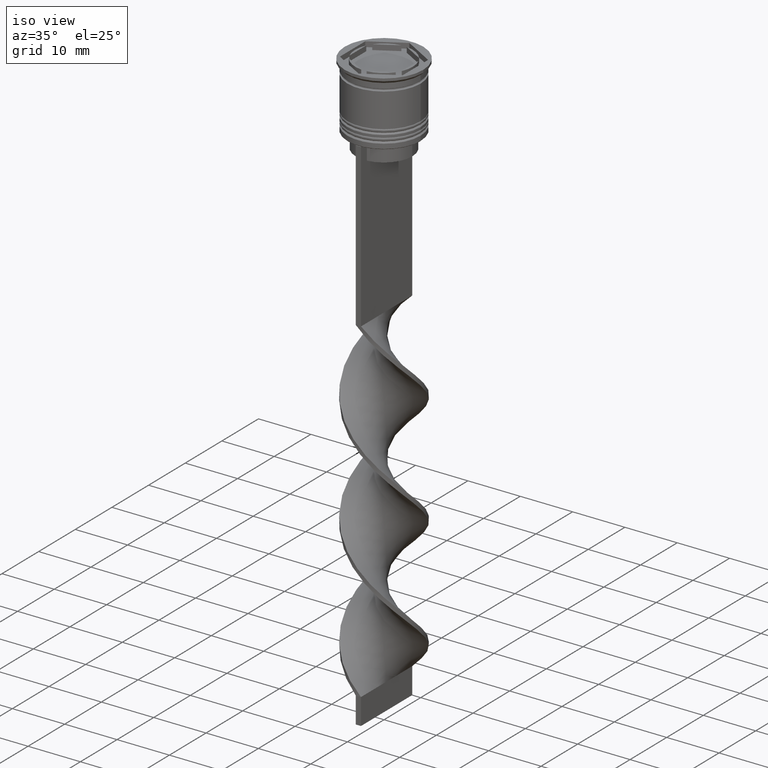
[diagram: clean part render]
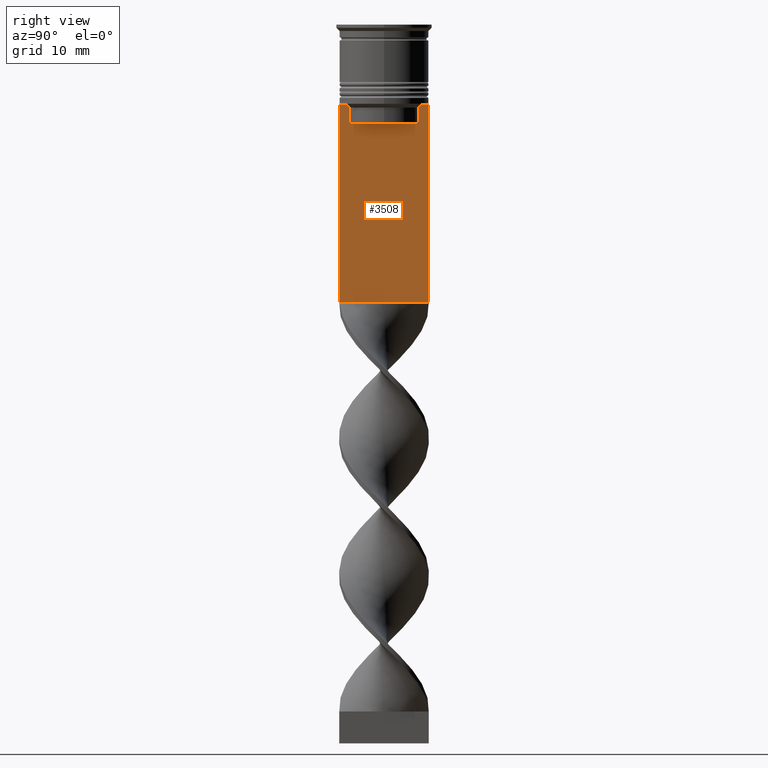
[diagram: tour spotlight — one face highlighted and labeled with its STEP entity id]
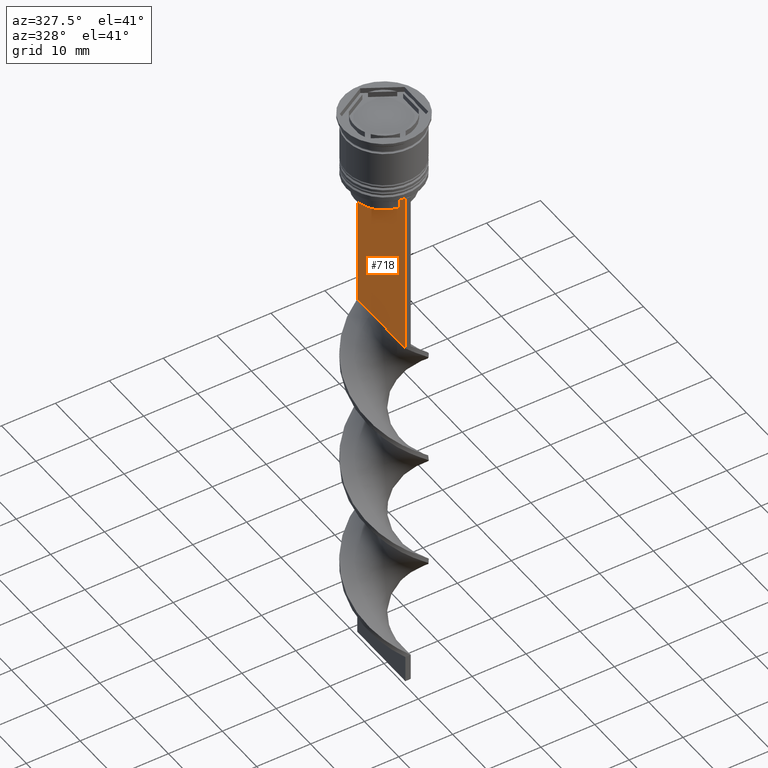
[diagram: tour spotlight — one face highlighted and labeled with its STEP entity id]
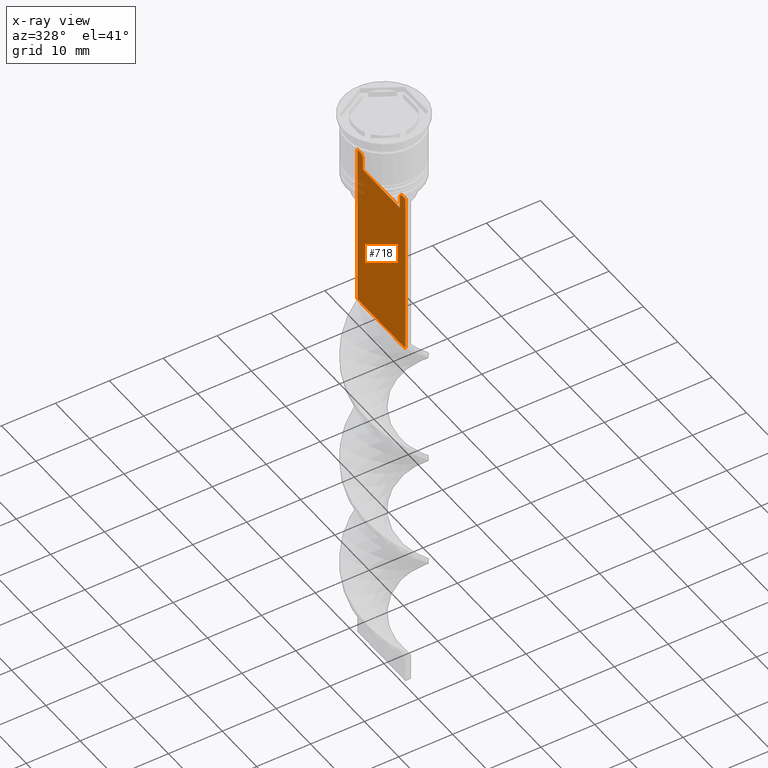
[diagram: x-ray of the same camera — body ghosted, this tour face saturated]
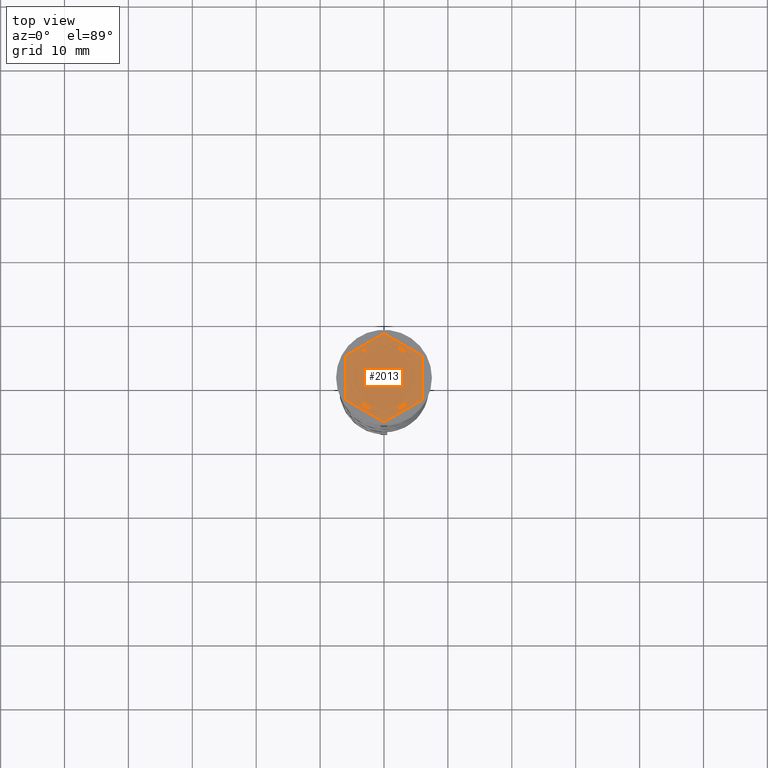
[diagram: tour spotlight — one face highlighted and labeled with its STEP entity id]
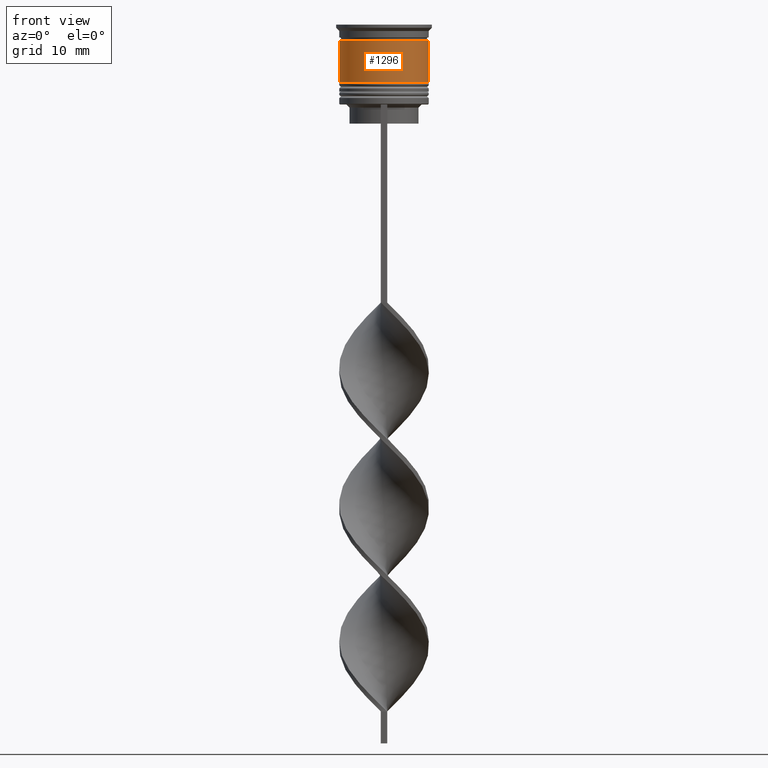
[diagram: tour spotlight — one face highlighted and labeled with its STEP entity id]
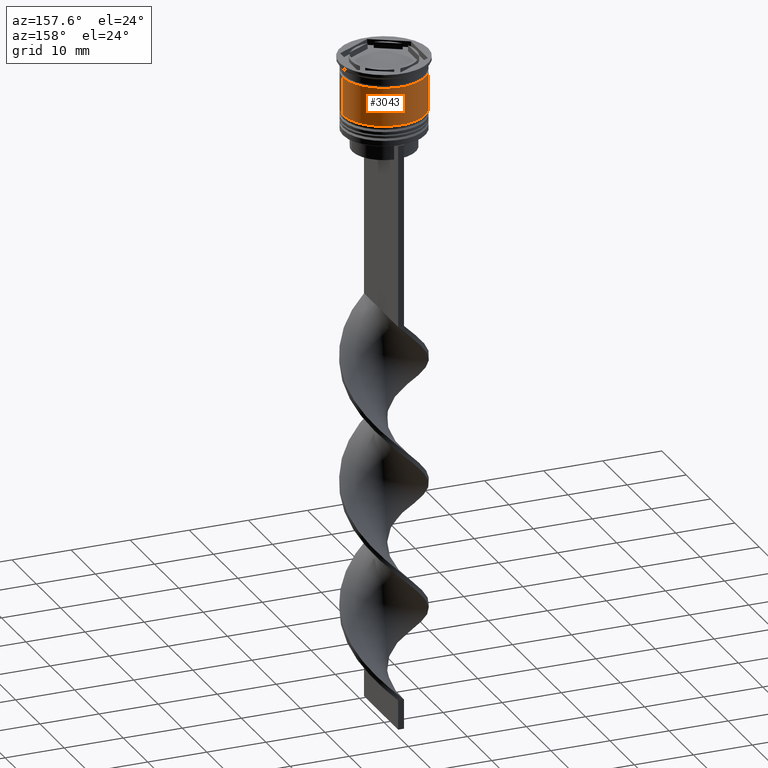
[diagram: tour spotlight — one face highlighted and labeled with its STEP entity id]
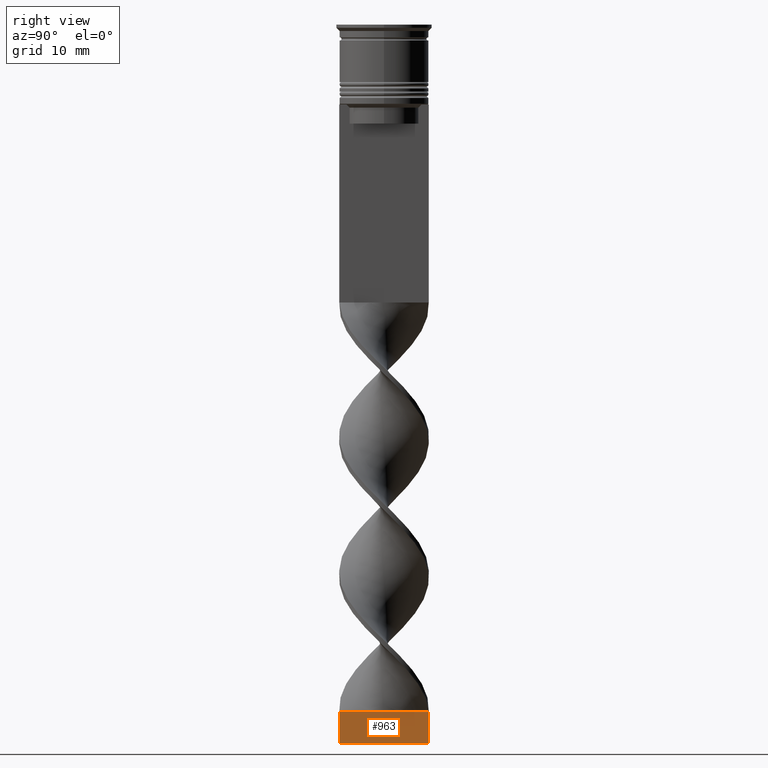
[diagram: tour spotlight — one face highlighted and labeled with its STEP entity id]
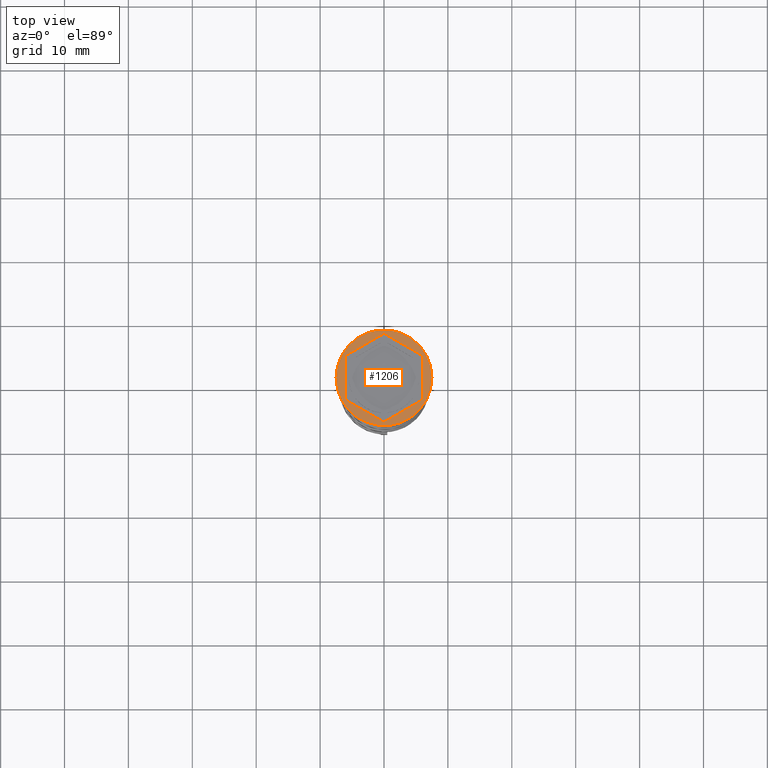
[diagram: tour spotlight — one face highlighted and labeled with its STEP entity id]
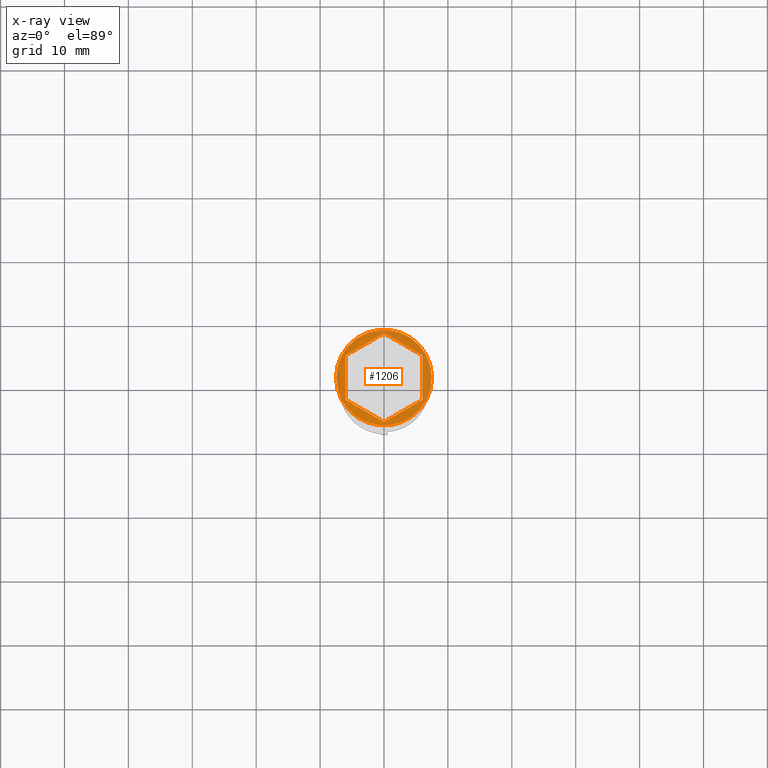
[diagram: x-ray of the same camera — body ghosted, this tour face saturated]
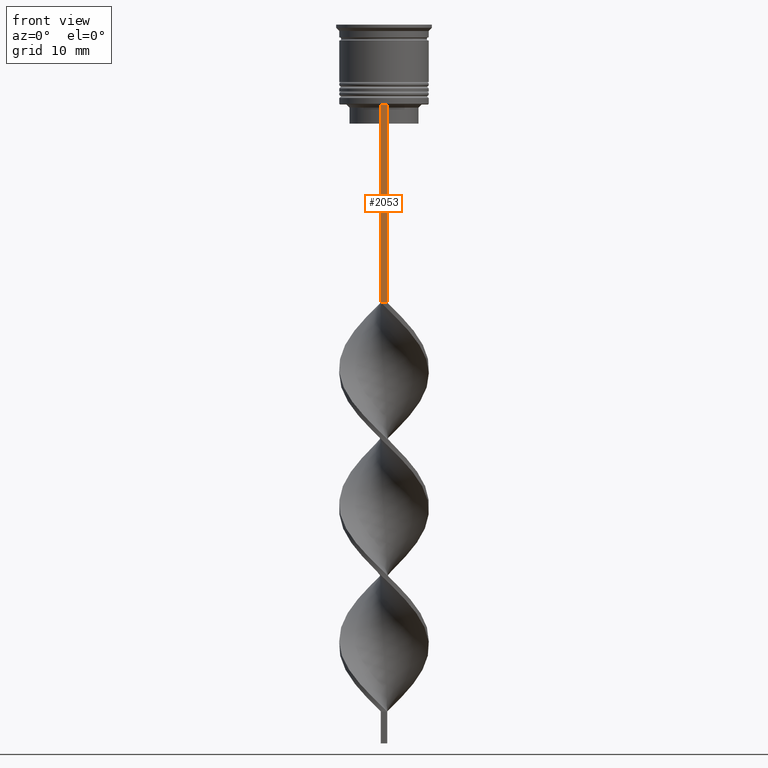
[diagram: tour spotlight — one face highlighted and labeled with its STEP entity id]
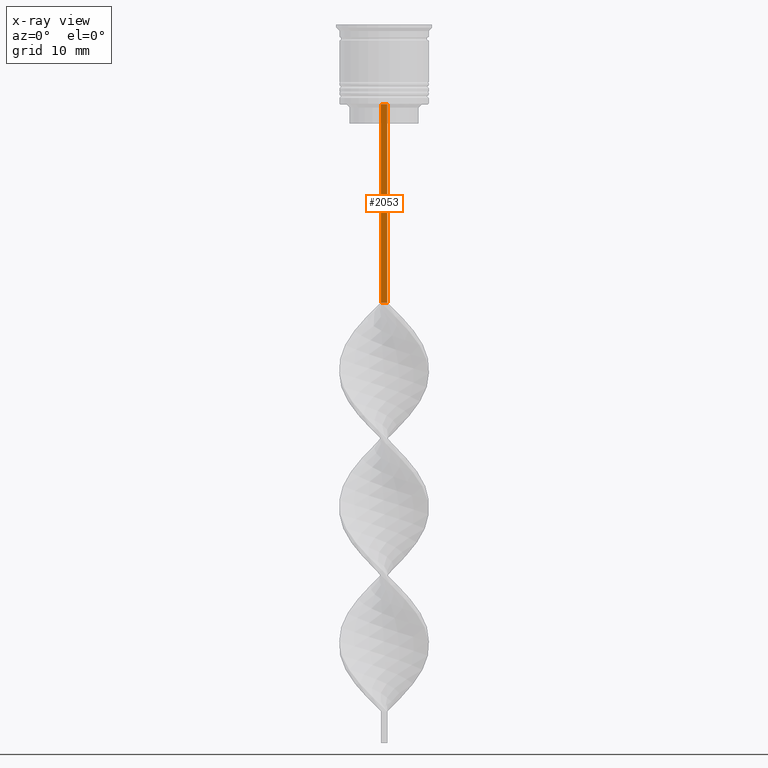
[diagram: x-ray of the same camera — body ghosted, this tour face saturated]
A machine part: a face-by-face anatomy tour. The part has 98 B-rep faces; the first image is the clean iso view, then the 8 largest visible faces are spotlighted one at a time (largest first), each with its STEP entity span.

Face 1 — right view, entity #3508. In plain terms, the highlighted planar face has unit normal (-1, 0, 0).
Definition (entity closure, byte-faithful):
#15 = ORIENTED_EDGE ( 'NONE', *, *, #1658, .T. ) ;
#73 = EDGE_CURVE ( 'NONE', #2252, #1368, #779, .T. ) ;
#98 = CARTESIAN_POINT ( 'NONE',  ( 0.5000000000000000000, 6.881860213634102053, -12.50000000000000000 ) ) ;
#116 = ORIENTED_EDGE ( 'NONE', *, *, #73, .T. ) ;
#202 = CARTESIAN_POINT ( 'NONE',  ( 0.5000000000000000000, 5.376802023508029826, -13.00000000000000178 ) ) ;
#205 = VECTOR ( 'NONE', #2556, 1000.000000000000000 ) ;
#234 = LINE ( 'NONE', #2743, #2457 ) ;
#376 = VECTOR ( 'NONE', #2178, 1000.000000000000000 ) ;
#398 = FACE_OUTER_BOUND ( 'NONE', #2976, .T. ) ;
#413 = DIRECTION ( 'NONE',  ( -1.000000000000000000, 0.000000000000000000, 0.000000000000000000 ) ) ;
#437 = VECTOR ( 'NONE', #3575, 1000.000000000000000 ) ;
#459 = ORIENTED_EDGE ( 'NONE', *, *, #2647, .T. ) ;
#468 = VERTEX_POINT ( 'NONE', #2555 ) ;
#478 = DIRECTION ( 'NONE',  ( 0.000000000000000000, -1.000000000000000000, 0.000000000000000000 ) ) ;
#491 = VECTOR ( 'NONE', #2483, 1000.000000000000000 ) ;
#507 = CARTESIAN_POINT ( 'NONE',  ( 0.5000000000000000000, -5.376802023508029826, 0.000000000000000000 ) ) ;
#510 = CARTESIAN_POINT ( 'NONE',  ( 0.5000000000000000000, 5.711478846560141598, -12.66669470477064685 ) ) ;
#552 = LINE ( 'NONE', #1056, #3183 ) ;
#586 = ORIENTED_EDGE ( 'NONE', *, *, #1475, .F. ) ;
#634 = ORIENTED_EDGE ( 'NONE', *, *, #1341, .T. ) ;
#641 = CARTESIAN_POINT ( 'NONE',  ( 0.5000000000000000000, -6.999999999999997335, -12.50000000000000000 ) ) ;
#662 = VECTOR ( 'NONE', #2181, 1000.000000000000000 ) ;
#708 = CARTESIAN_POINT ( 'NONE',  ( 0.5000000000000000000, 5.878775382679629402, -12.50000000000000000 ) ) ;
#748 = ORIENTED_EDGE ( 'NONE', *, *, #1213, .T. ) ;
#749 = CARTESIAN_POINT ( 'NONE',  ( 0.5000000000000000000, 5.544156989057553275, -12.83336397825725861 ) ) ;
#761 = CARTESIAN_POINT ( 'NONE',  ( 0.5000000000000000000, -5.878775382679629402, -12.50000000000000000 ) ) ;
#776 = LINE ( 'NONE', #507, #376 ) ;
#779 = LINE ( 'NONE', #1386, #662 ) ;
#798 = DIRECTION ( 'NONE',  ( 0.000000000000000000, 0.000000000000000000, -1.000000000000000000 ) ) ;
#811 = CARTESIAN_POINT ( 'NONE',  ( 0.5000000000000000000, 5.376802023508029826, -13.00000000000000178 ) ) ;
#834 = EDGE_CURVE ( 'NONE', #1172, #1140, #234, .T. ) ;
#941 = CARTESIAN_POINT ( 'NONE',  ( 0.5000000000000000000, 5.878775382679629402, -12.50000000000000000 ) ) ;
#1042 = CARTESIAN_POINT ( 'NONE',  ( 0.5000000000000000000, -6.881860213634102053, -12.50000000000000000 ) ) ;
#1056 = CARTESIAN_POINT ( 'NONE',  ( 0.5000000000000000000, 5.400000000000003908, -15.50000000000000000 ) ) ;
#1082 = B_SPLINE_CURVE_WITH_KNOTS ( 'NONE', 3,
 ( #3223, #1596, #2417, #761 ),
 .UNSPECIFIED., .F., .F.,
 ( 4, 4 ),
 ( 0.02539176325380714666, 0.02610162431828674801 ),
 .UNSPECIFIED. ) ;
#1098 = ORIENTED_EDGE ( 'NONE', *, *, #3358, .T. ) ;
#1140 = VERTEX_POINT ( 'NONE', #1511 ) ;
#1172 = VERTEX_POINT ( 'NONE', #2733 ) ;
#1173 = VERTEX_POINT ( 'NONE', #2107 ) ;
#1213 = EDGE_CURVE ( 'NONE', #1368, #2185, #3309, .T. ) ;
#1218 = VERTEX_POINT ( 'NONE', #2670 ) ;
#1305 = CARTESIAN_POINT ( 'NONE',  ( 0.5000000000000000000, 7.000000000000002665, -12.50000000000000000 ) ) ;
#1341 = EDGE_CURVE ( 'NONE', #1140, #1173, #1508, .T. ) ;
#1368 = VERTEX_POINT ( 'NONE', #941 ) ;
#1378 = CARTESIAN_POINT ( 'NONE',  ( 0.5000000000000000000, -5.376802023508029826, -13.00000000000000178 ) ) ;
#1380 = VECTOR ( 'NONE', #1989, 1000.000000000000000 ) ;
#1384 = CARTESIAN_POINT ( 'NONE',  ( 0.5000000000000000000, 7.000000000000002665, 1.535668847618198329 ) ) ;
#1386 = CARTESIAN_POINT ( 'NONE',  ( 0.5000000000000000000, -6.999999999999997335, -12.50000000000000000 ) ) ;
#1400 = LINE ( 'NONE', #1649, #437 ) ;
#1475 = EDGE_CURVE ( 'NONE', #2630, #1173, #2434, .T. ) ;
#1486 = ORIENTED_EDGE ( 'NONE', *, *, #3220, .T. ) ;
#1508 = LINE ( 'NONE', #2857, #205 ) ;
#1511 = CARTESIAN_POINT ( 'NONE',  ( 0.5000000000000000000, -6.999999999999997335, -43.50000000000000000 ) ) ;
#1577 = DIRECTION ( 'NONE',  ( 0.000000000000000000, -1.000000000000000000, 0.000000000000000000 ) ) ;
#1596 = CARTESIAN_POINT ( 'NONE',  ( 0.5000000000000000000, -5.544156999454441959, -12.83336396790503642 ) ) ;
#1649 = CARTESIAN_POINT ( 'NONE',  ( 0.5000000000000000000, 5.376802023508029826, 0.000000000000000000 ) ) ;
#1658 = EDGE_CURVE ( 'NONE', #3133, #2209, #776, .T. ) ;
#1664 = ORIENTED_EDGE ( 'NONE', *, *, #2033, .T. ) ;
#1707 = ORIENTED_EDGE ( 'NONE', *, *, #2606, .T. ) ;
#1772 = PLANE ( 'NONE',  #2360 ) ;
#1989 = DIRECTION ( 'NONE',  ( 0.000000000000000000, -1.000000000000000000, 0.000000000000000000 ) ) ;
#2033 = EDGE_CURVE ( 'NONE', #2048, #1172, #2680, .T. ) ;
#2048 = VERTEX_POINT ( 'NONE', #1042 ) ;
#2107 = CARTESIAN_POINT ( 'NONE',  ( 0.5000000000000000000, 7.000000000000002665, -43.50000000000000000 ) ) ;
#2108 = CARTESIAN_POINT ( 'NONE',  ( 0.5000000000000000000, -6.999999999999997335, 1.535668847618198329 ) ) ;
#2151 = DIRECTION ( 'NONE',  ( 0.000000000000000000, -1.000000000000000000, 0.000000000000000000 ) ) ;
#2178 = DIRECTION ( 'NONE',  ( -0.000000000000000000, -0.000000000000000000, 1.000000000000000000 ) ) ;
#2181 = DIRECTION ( 'NONE',  ( 0.000000000000000000, -1.000000000000000000, 0.000000000000000000 ) ) ;
#2185 = VERTEX_POINT ( 'NONE', #811 ) ;
#2209 = VERTEX_POINT ( 'NONE', #1378 ) ;
#2252 = VERTEX_POINT ( 'NONE', #98 ) ;
#2275 = LINE ( 'NONE', #641, #1380 ) ;
#2360 = AXIS2_PLACEMENT_3D ( 'NONE', #2108, #413, #2613 ) ;
#2417 = CARTESIAN_POINT ( 'NONE',  ( 0.5000000000000000000, -5.711478856069293286, -12.66669469529570335 ) ) ;
#2431 = ORIENTED_EDGE ( 'NONE', *, *, #834, .T. ) ;
#2434 = LINE ( 'NONE', #1384, #491 ) ;
#2457 = VECTOR ( 'NONE', #798, 1000.000000000000000 ) ;
#2483 = DIRECTION ( 'NONE',  ( 0.000000000000000000, 0.000000000000000000, -1.000000000000000000 ) ) ;
#2555 = CARTESIAN_POINT ( 'NONE',  ( 0.5000000000000000000, 5.376802023508029826, -15.50000000000000000 ) ) ;
#2556 = DIRECTION ( 'NONE',  ( 0.000000000000000000, 1.000000000000000000, 0.000000000000000000 ) ) ;
#2606 = EDGE_CURVE ( 'NONE', #2630, #2252, #2686, .T. ) ;
#2613 = DIRECTION ( 'NONE',  ( 0.000000000000000000, 0.000000000000000000, 1.000000000000000000 ) ) ;
#2630 = VERTEX_POINT ( 'NONE', #1305 ) ;
#2647 = EDGE_CURVE ( 'NONE', #2209, #1218, #1082, .T. ) ;
#2670 = CARTESIAN_POINT ( 'NONE',  ( 0.5000000000000000000, -5.878775382679629402, -12.50000000000000000 ) ) ;
#2680 = LINE ( 'NONE', #2981, #3063 ) ;
#2686 = LINE ( 'NONE', #3480, #3182 ) ;
#2733 = CARTESIAN_POINT ( 'NONE',  ( 0.5000000000000000000, -6.999999999999997335, -12.50000000000000000 ) ) ;
#2743 = CARTESIAN_POINT ( 'NONE',  ( 0.5000000000000000000, -6.999999999999997335, 1.535668847618198329 ) ) ;
#2751 = ORIENTED_EDGE ( 'NONE', *, *, #2765, .T. ) ;
#2765 = EDGE_CURVE ( 'NONE', #2185, #468, #1400, .T. ) ;
#2857 = CARTESIAN_POINT ( 'NONE',  ( 0.5000000000000000000, -6.999999999999997335, -43.50000000000000000 ) ) ;
#2976 = EDGE_LOOP ( 'NONE', ( #116, #748, #2751, #1486, #15, #459, #1098, #1664, #2431, #634, #586, #1707 ) ) ;
#2981 = CARTESIAN_POINT ( 'NONE',  ( 0.5000000000000000000, -6.999999999999997335, -12.50000000000000000 ) ) ;
#3063 = VECTOR ( 'NONE', #478, 1000.000000000000000 ) ;
#3073 = CARTESIAN_POINT ( 'NONE',  ( 0.5000000000000000000, -5.376802023508029826, -15.50000000000000000 ) ) ;
#3133 = VERTEX_POINT ( 'NONE', #3073 ) ;
#3182 = VECTOR ( 'NONE', #1577, 1000.000000000000000 ) ;
#3183 = VECTOR ( 'NONE', #2151, 1000.000000000000000 ) ;
#3220 = EDGE_CURVE ( 'NONE', #468, #3133, #552, .T. ) ;
#3223 = CARTESIAN_POINT ( 'NONE',  ( 0.5000000000000000000, -5.376802023508029826, -13.00000000000000178 ) ) ;
#3309 = B_SPLINE_CURVE_WITH_KNOTS ( 'NONE', 3,
 ( #708, #510, #749, #202 ),
 .UNSPECIFIED., .F., .F.,
 ( 4, 4 ),
 ( 0.01003009312103698807, 0.01073859663834952557 ),
 .UNSPECIFIED. ) ;
#3358 = EDGE_CURVE ( 'NONE', #1218, #2048, #2275, .T. ) ;
#3480 = CARTESIAN_POINT ( 'NONE',  ( 0.5000000000000000000, -6.999999999999997335, -12.50000000000000000 ) ) ;
#3508 = ADVANCED_FACE ( 'NONE', ( #398 ), #1772, .F. ) ;
#3575 = DIRECTION ( 'NONE',  ( 0.000000000000000000, 0.000000000000000000, -1.000000000000000000 ) ) ;

Face 2 — auxiliary view, entity #718. An x-ray twin of the same camera follows (body ghosted, this face saturated) — the face is partly hidden behind the body. In plain terms, the highlighted planar face has unit normal (-1, 0, 0).
Definition (entity closure, byte-faithful):
#14 = CARTESIAN_POINT ( 'NONE',  ( -0.5000000000000000000, 5.878775382679629402, -12.50000000000000000 ) ) ;
#23 = CARTESIAN_POINT ( 'NONE',  ( -0.5000000000000000000, -5.878775382679629402, -12.50000000000000000 ) ) ;
#95 = CARTESIAN_POINT ( 'NONE',  ( -0.5000000000000000000, 6.881860213634102053, -12.50000000000000000 ) ) ;
#105 = VERTEX_POINT ( 'NONE', #95 ) ;
#134 = CARTESIAN_POINT ( 'NONE',  ( -0.5000000000000000000, -6.999999999999997335, -43.50000000000000000 ) ) ;
#145 = ORIENTED_EDGE ( 'NONE', *, *, #588, .F. ) ;
#197 = CARTESIAN_POINT ( 'NONE',  ( -0.5000000000000000000, -5.878775382679629402, -12.50000000000000000 ) ) ;
#232 = EDGE_CURVE ( 'NONE', #2890, #105, #2486, .T. ) ;
#271 = VECTOR ( 'NONE', #2638, 1000.000000000000000 ) ;
#286 = PLANE ( 'NONE',  #3341 ) ;
#342 = ORIENTED_EDGE ( 'NONE', *, *, #632, .F. ) ;
#364 = EDGE_CURVE ( 'NONE', #2890, #917, #2306, .T. ) ;
#465 = CARTESIAN_POINT ( 'NONE',  ( -0.5000000000000000000, -5.376802023508029826, -15.50000000000000000 ) ) ;
#470 = DIRECTION ( 'NONE',  ( 0.000000000000000000, 0.000000000000000000, -1.000000000000000000 ) ) ;
#532 = VERTEX_POINT ( 'NONE', #1803 ) ;
#576 = CARTESIAN_POINT ( 'NONE',  ( -0.5000000000000000000, -6.999999999999997335, -12.50000000000000000 ) ) ;
#588 = EDGE_CURVE ( 'NONE', #3492, #664, #1012, .T. ) ;
#632 = EDGE_CURVE ( 'NONE', #1320, #3352, #1740, .T. ) ;
#658 = CARTESIAN_POINT ( 'NONE',  ( -0.5000000000000000000, 5.711478846560141598, -12.66669470477064685 ) ) ;
#664 = VERTEX_POINT ( 'NONE', #465 ) ;
#709 = CARTESIAN_POINT ( 'NONE',  ( -0.5000000000000000000, 5.544156989057553275, -12.83336397825725861 ) ) ;
#714 = EDGE_CURVE ( 'NONE', #3352, #2144, #3297, .T. ) ;
#715 = VECTOR ( 'NONE', #1065, 1000.000000000000000 ) ;
#718 = ADVANCED_FACE ( 'NONE', ( #2446 ), #286, .T. ) ;
#778 = VECTOR ( 'NONE', #2910, 1000.000000000000000 ) ;
#851 = CARTESIAN_POINT ( 'NONE',  ( -0.5000000000000000000, -6.999999999999997335, 1.535668847618198329 ) ) ;
#900 = VECTOR ( 'NONE', #3060, 1000.000000000000000 ) ;
#917 = VERTEX_POINT ( 'NONE', #1407 ) ;
#977 = ORIENTED_EDGE ( 'NONE', *, *, #364, .T. ) ;
#1012 = LINE ( 'NONE', #1859, #778 ) ;
#1033 = B_SPLINE_CURVE_WITH_KNOTS ( 'NONE', 3,
 ( #1236, #658, #709, #2344 ),
 .UNSPECIFIED., .F., .F.,
 ( 4, 4 ),
 ( 0.01003009312103698807, 0.01073859663834952557 ),
 .UNSPECIFIED. ) ;
#1046 = DIRECTION ( 'NONE',  ( 0.000000000000000000, -1.000000000000000000, 0.000000000000000000 ) ) ;
#1065 = DIRECTION ( 'NONE',  ( 0.000000000000000000, -1.000000000000000000, 0.000000000000000000 ) ) ;
#1102 = CARTESIAN_POINT ( 'NONE',  ( -0.5000000000000000000, 7.000000000000002665, -12.50000000000000000 ) ) ;
#1147 = VERTEX_POINT ( 'NONE', #2290 ) ;
#1233 = EDGE_CURVE ( 'NONE', #1689, #1147, #1618, .T. ) ;
#1236 = CARTESIAN_POINT ( 'NONE',  ( -0.5000000000000000000, 5.878775382679629402, -12.50000000000000000 ) ) ;
#1245 = ORIENTED_EDGE ( 'NONE', *, *, #1613, .F. ) ;
#1298 = DIRECTION ( 'NONE',  ( 0.000000000000000000, 1.000000000000000000, 0.000000000000000000 ) ) ;
#1301 = EDGE_LOOP ( 'NONE', ( #2375, #1245, #1402, #977, #3230, #1367, #1685, #1631, #342, #3216, #145, #3554 ) ) ;
#1309 = CARTESIAN_POINT ( 'NONE',  ( -0.5000000000000000000, -6.999999999999997335, 1.535668847618198329 ) ) ;
#1320 = VERTEX_POINT ( 'NONE', #1748 ) ;
#1367 = ORIENTED_EDGE ( 'NONE', *, *, #1233, .F. ) ;
#1402 = ORIENTED_EDGE ( 'NONE', *, *, #232, .F. ) ;
#1407 = CARTESIAN_POINT ( 'NONE',  ( -0.5000000000000000000, 7.000000000000002665, -43.50000000000000000 ) ) ;
#1437 = DIRECTION ( 'NONE',  ( 0.000000000000000000, 0.000000000000000000, -1.000000000000000000 ) ) ;
#1532 = VECTOR ( 'NONE', #470, 1000.000000000000000 ) ;
#1613 = EDGE_CURVE ( 'NONE', #105, #2958, #3574, .T. ) ;
#1618 = LINE ( 'NONE', #1309, #1532 ) ;
#1627 = CARTESIAN_POINT ( 'NONE',  ( -0.5000000000000000000, -6.881860213634102053, -12.50000000000000000 ) ) ;
#1631 = ORIENTED_EDGE ( 'NONE', *, *, #714, .F. ) ;
#1685 = ORIENTED_EDGE ( 'NONE', *, *, #2228, .F. ) ;
#1689 = VERTEX_POINT ( 'NONE', #1982 ) ;
#1740 = B_SPLINE_CURVE_WITH_KNOTS ( 'NONE', 3,
 ( #3221, #3478, #1819, #197 ),
 .UNSPECIFIED., .F., .F.,
 ( 4, 4 ),
 ( 0.02539176325380714666, 0.02610162431828674801 ),
 .UNSPECIFIED. ) ;
#1748 = CARTESIAN_POINT ( 'NONE',  ( -0.5000000000000000000, -5.376802023508029826, -13.00000000000000178 ) ) ;
#1773 = VECTOR ( 'NONE', #1046, 1000.000000000000000 ) ;
#1803 = CARTESIAN_POINT ( 'NONE',  ( -0.5000000000000000000, 5.376802023508029826, -13.00000000000000178 ) ) ;
#1809 = CARTESIAN_POINT ( 'NONE',  ( -0.5000000000000000000, 5.376802023508029826, -15.50000000000000000 ) ) ;
#1819 = CARTESIAN_POINT ( 'NONE',  ( -0.5000000000000000000, -5.711478856069293286, -12.66669469529570335 ) ) ;
#1859 = CARTESIAN_POINT ( 'NONE',  ( -0.5000000000000000000, 5.400000000000003908, -15.50000000000000000 ) ) ;
#1867 = EDGE_CURVE ( 'NONE', #1147, #917, #3203, .T. ) ;
#1887 = DIRECTION ( 'NONE',  ( 0.000000000000000000, -1.000000000000000000, 0.000000000000000000 ) ) ;
#1944 = CARTESIAN_POINT ( 'NONE',  ( -0.5000000000000000000, -6.999999999999997335, -12.50000000000000000 ) ) ;
#1959 = LINE ( 'NONE', #3608, #2237 ) ;
#1982 = CARTESIAN_POINT ( 'NONE',  ( -0.5000000000000000000, -6.999999999999997335, -12.50000000000000000 ) ) ;
#2055 = VECTOR ( 'NONE', #1437, 1000.000000000000000 ) ;
#2133 = CARTESIAN_POINT ( 'NONE',  ( -0.5000000000000000000, 5.376802023508029826, 0.000000000000000000 ) ) ;
#2144 = VERTEX_POINT ( 'NONE', #1627 ) ;
#2215 = CARTESIAN_POINT ( 'NONE',  ( -0.5000000000000000000, -6.999999999999997335, -12.50000000000000000 ) ) ;
#2228 = EDGE_CURVE ( 'NONE', #2144, #1689, #1959, .T. ) ;
#2234 = EDGE_CURVE ( 'NONE', #664, #1320, #3103, .T. ) ;
#2237 = VECTOR ( 'NONE', #1887, 1000.000000000000000 ) ;
#2242 = DIRECTION ( 'NONE',  ( -0.000000000000000000, -0.000000000000000000, 1.000000000000000000 ) ) ;
#2290 = CARTESIAN_POINT ( 'NONE',  ( -0.5000000000000000000, -6.999999999999997335, -43.50000000000000000 ) ) ;
#2306 = LINE ( 'NONE', #3442, #2055 ) ;
#2344 = CARTESIAN_POINT ( 'NONE',  ( -0.5000000000000000000, 5.376802023508029826, -13.00000000000000178 ) ) ;
#2375 = ORIENTED_EDGE ( 'NONE', *, *, #3463, .F. ) ;
#2403 = LINE ( 'NONE', #2133, #271 ) ;
#2415 = VECTOR ( 'NONE', #2242, 1000.000000000000000 ) ;
#2446 = FACE_OUTER_BOUND ( 'NONE', #1301, .T. ) ;
#2482 = DIRECTION ( 'NONE',  ( 0.000000000000000000, 0.000000000000000000, 1.000000000000000000 ) ) ;
#2486 = LINE ( 'NONE', #2215, #715 ) ;
#2638 = DIRECTION ( 'NONE',  ( 0.000000000000000000, 0.000000000000000000, -1.000000000000000000 ) ) ;
#2821 = VECTOR ( 'NONE', #1298, 1000.000000000000000 ) ;
#2890 = VERTEX_POINT ( 'NONE', #1102 ) ;
#2910 = DIRECTION ( 'NONE',  ( 0.000000000000000000, -1.000000000000000000, 0.000000000000000000 ) ) ;
#2958 = VERTEX_POINT ( 'NONE', #14 ) ;
#2974 = EDGE_CURVE ( 'NONE', #532, #3492, #2403, .T. ) ;
#3060 = DIRECTION ( 'NONE',  ( 0.000000000000000000, -1.000000000000000000, 0.000000000000000000 ) ) ;
#3079 = DIRECTION ( 'NONE',  ( -1.000000000000000000, 0.000000000000000000, 0.000000000000000000 ) ) ;
#3103 = LINE ( 'NONE', #3158, #2415 ) ;
#3158 = CARTESIAN_POINT ( 'NONE',  ( -0.5000000000000000000, -5.376802023508029826, 0.000000000000000000 ) ) ;
#3203 = LINE ( 'NONE', #134, #2821 ) ;
#3216 = ORIENTED_EDGE ( 'NONE', *, *, #2234, .F. ) ;
#3221 = CARTESIAN_POINT ( 'NONE',  ( -0.5000000000000000000, -5.376802023508029826, -13.00000000000000178 ) ) ;
#3230 = ORIENTED_EDGE ( 'NONE', *, *, #1867, .F. ) ;
#3297 = LINE ( 'NONE', #576, #1773 ) ;
#3341 = AXIS2_PLACEMENT_3D ( 'NONE', #851, #3079, #2482 ) ;
#3352 = VERTEX_POINT ( 'NONE', #23 ) ;
#3442 = CARTESIAN_POINT ( 'NONE',  ( -0.5000000000000000000, 7.000000000000002665, 1.535668847618198329 ) ) ;
#3463 = EDGE_CURVE ( 'NONE', #2958, #532, #1033, .T. ) ;
#3478 = CARTESIAN_POINT ( 'NONE',  ( -0.5000000000000000000, -5.544156999454441959, -12.83336396790503642 ) ) ;
#3492 = VERTEX_POINT ( 'NONE', #1809 ) ;
#3554 = ORIENTED_EDGE ( 'NONE', *, *, #2974, .F. ) ;
#3574 = LINE ( 'NONE', #1944, #900 ) ;
#3608 = CARTESIAN_POINT ( 'NONE',  ( -0.5000000000000000000, -6.999999999999997335, -12.50000000000000000 ) ) ;

Face 3 — top view, entity #2013. In plain terms, the highlighted planar face has unit normal (0, 0, 1).
Definition (entity closure, byte-faithful):
#62 = VERTEX_POINT ( 'NONE', #1760 ) ;
#70 = EDGE_CURVE ( 'NONE', #3046, #3550, #854, .T. ) ;
#87 = DIRECTION ( 'NONE',  ( 1.000000000000000000, 0.000000000000000000, 0.000000000000000000 ) ) ;
#127 = DIRECTION ( 'NONE',  ( 0.000000000000000000, 0.000000000000000000, 1.000000000000000000 ) ) ;
#136 = CIRCLE ( 'NONE', #2172, 5.500000000000001776 ) ;
#151 = CIRCLE ( 'NONE', #1312, 5.500000000000001776 ) ;
#190 = EDGE_CURVE ( 'NONE', #758, #666, #419, .T. ) ;
#211 = CIRCLE ( 'NONE', #2182, 5.500000000000001776 ) ;
#246 = CARTESIAN_POINT ( 'NONE',  ( 6.000000000000000000, 3.464101615137753942, -1.000000000000000000 ) ) ;
#250 = DIRECTION ( 'NONE',  ( 0.8660254037844387076, -0.4999999999999998335, 0.000000000000000000 ) ) ;
#296 = CARTESIAN_POINT ( 'NONE',  ( -5.000000000000000888, 2.291287847477921247, -1.000000000000000888 ) ) ;
#304 = CARTESIAN_POINT ( 'NONE',  ( -6.000000000000000000, 3.464101615137752166, -1.000000000000000000 ) ) ;
#310 = VECTOR ( 'NONE', #3560, 1000.000000000000000 ) ;
#326 = EDGE_CURVE ( 'NONE', #1141, #3259, #2162, .T. ) ;
#392 = VERTEX_POINT ( 'NONE', #3166 ) ;
#397 = LINE ( 'NONE', #2041, #955 ) ;
#419 = CIRCLE ( 'NONE', #2109, 5.500000000000001776 ) ;
#508 = CARTESIAN_POINT ( 'NONE',  ( -5.000000000000000888, -2.886751345948129099, -1.000000000000000888 ) ) ;
#571 = EDGE_CURVE ( 'NONE', #62, #392, #950, .T. ) ;
#584 = EDGE_CURVE ( 'NONE', #2812, #3487, #136, .T. ) ;
#643 = LINE ( 'NONE', #1426, #729 ) ;
#666 = VERTEX_POINT ( 'NONE', #1230 ) ;
#716 = CARTESIAN_POINT ( 'NONE',  ( 5.999999999999998224, -3.464101615137753942, -1.000000000000000000 ) ) ;
#729 = VECTOR ( 'NONE', #2809, 1000.000000000000000 ) ;
#736 = CIRCLE ( 'NONE', #1080, 5.500000000000001776 ) ;
#756 = FACE_OUTER_BOUND ( 'NONE', #3346, .T. ) ;
#758 = VERTEX_POINT ( 'NONE', #2177 ) ;
#785 = VECTOR ( 'NONE', #2098, 1000.000000000000000 ) ;
#796 = ORIENTED_EDGE ( 'NONE', *, *, #1862, .T. ) ;
#803 = CARTESIAN_POINT ( 'NONE',  ( -4.484313483298445036, 3.184483095183233470, -1.000000000000000888 ) ) ;
#827 = DIRECTION ( 'NONE',  ( 0.000000000000000000, 0.000000000000000000, 1.000000000000000000 ) ) ;
#854 = LINE ( 'NONE', #304, #310 ) ;
#933 = DIRECTION ( 'NONE',  ( 0.8660254037844388186, -0.4999999999999997224, 0.000000000000000000 ) ) ;
#950 = CIRCLE ( 'NONE', #1710, 5.500000000000001776 ) ;
#953 = FACE_BOUND ( 'NONE', #1696, .T. ) ;
#955 = VECTOR ( 'NONE', #3174, 1000.000000000000000 ) ;
#975 = CARTESIAN_POINT ( 'NONE',  ( -5.000000000000000888, -2.291287847477921247, -1.000000000000000888 ) ) ;
#985 = DIRECTION ( 'NONE',  ( 1.000000000000000000, 0.000000000000000000, 0.000000000000000000 ) ) ;
#990 = DIRECTION ( 'NONE',  ( 0.000000000000000000, 0.000000000000000000, 1.000000000000000000 ) ) ;
#992 = ORIENTED_EDGE ( 'NONE', *, *, #3606, .F. ) ;
#993 = DIRECTION ( 'NONE',  ( 1.000000000000000000, 0.000000000000000000, 0.000000000000000000 ) ) ;
#999 = CARTESIAN_POINT ( 'NONE',  ( 0.000000000000000000, 0.000000000000000000, -1.000000000000000000 ) ) ;
#1068 = EDGE_LOOP ( 'NONE', ( #1678, #3142, #992 ) ) ;
#1080 = AXIS2_PLACEMENT_3D ( 'NONE', #999, #127, #985 ) ;
#1088 = ORIENTED_EDGE ( 'NONE', *, *, #1566, .F. ) ;
#1110 = DIRECTION ( 'NONE',  ( -0.8660254037844387076, 0.4999999999999998335, 0.000000000000000000 ) ) ;
#1117 = EDGE_LOOP ( 'NONE', ( #1155, #3425 ) ) ;
#1126 = CIRCLE ( 'NONE', #3171, 5.500000000000001776 ) ;
#1137 = EDGE_CURVE ( 'NONE', #1302, #2761, #397, .T. ) ;
#1141 = VERTEX_POINT ( 'NONE', #2342 ) ;
#1155 = ORIENTED_EDGE ( 'NONE', *, *, #1412, .F. ) ;
#1214 = CARTESIAN_POINT ( 'NONE',  ( -1.734723475976807094E-15, -5.773502691896258199, -1.000000000000000888 ) ) ;
#1230 = CARTESIAN_POINT ( 'NONE',  ( -0.5156865167015569629, -5.475770942661155161, -1.000000000000000888 ) ) ;
#1252 = EDGE_CURVE ( 'NONE', #2040, #3046, #2420, .T. ) ;
#1263 = PLANE ( 'NONE',  #3118 ) ;
#1265 = EDGE_LOOP ( 'NONE', ( #2282, #1088 ) ) ;
#1277 = CARTESIAN_POINT ( 'NONE',  ( -6.000000000000000000, 3.464101615137752166, -1.000000000000000000 ) ) ;
#1286 = DIRECTION ( 'NONE',  ( 1.000000000000000000, 0.000000000000000000, 0.000000000000000000 ) ) ;
#1302 = VERTEX_POINT ( 'NONE', #803 ) ;
#1312 = AXIS2_PLACEMENT_3D ( 'NONE', #3451, #2062, #3181 ) ;
#1327 = ORIENTED_EDGE ( 'NONE', *, *, #3349, .T. ) ;
#1359 = CARTESIAN_POINT ( 'NONE',  ( 5.000000000000000888, 2.886751345948130876, -1.000000000000000888 ) ) ;
#1381 = ORIENTED_EDGE ( 'NONE', *, *, #2725, .F. ) ;
#1412 = EDGE_CURVE ( 'NONE', #3259, #1141, #1126, .T. ) ;
#1415 = CARTESIAN_POINT ( 'NONE',  ( -0.5156865167015569629, 5.475770942661155161, -1.000000000000000888 ) ) ;
#1426 = CARTESIAN_POINT ( 'NONE',  ( -5.000000000000000888, 2.886751345948129099, -1.000000000000000888 ) ) ;
#1443 = LINE ( 'NONE', #3362, #2302 ) ;
#1450 = VERTEX_POINT ( 'NONE', #1839 ) ;
#1459 = LINE ( 'NONE', #1682, #1607 ) ;
#1543 = CARTESIAN_POINT ( 'NONE',  ( 0.000000000000000000, 0.000000000000000000, -1.000000000000000000 ) ) ;
#1566 = EDGE_CURVE ( 'NONE', #3487, #2812, #2516, .T. ) ;
#1575 = CARTESIAN_POINT ( 'NONE',  ( 0.000000000000000000, 0.000000000000000000, -1.000000000000000000 ) ) ;
#1607 = VECTOR ( 'NONE', #933, 1000.000000000000114 ) ;
#1609 = ORIENTED_EDGE ( 'NONE', *, *, #70, .T. ) ;
#1610 = DIRECTION ( 'NONE',  ( 1.000000000000000000, 0.000000000000000000, 0.000000000000000000 ) ) ;
#1678 = ORIENTED_EDGE ( 'NONE', *, *, #2161, .F. ) ;
#1682 = CARTESIAN_POINT ( 'NONE',  ( -6.000000000000000000, -3.464101615137755719, -1.000000000000000000 ) ) ;
#1696 = EDGE_LOOP ( 'NONE', ( #2921, #1381 ) ) ;
#1710 = AXIS2_PLACEMENT_3D ( 'NONE', #2394, #3513, #3496 ) ;
#1715 = ORIENTED_EDGE ( 'NONE', *, *, #3393, .T. ) ;
#1737 = LINE ( 'NONE', #2313, #2766 ) ;
#1756 = ORIENTED_EDGE ( 'NONE', *, *, #2080, .T. ) ;
#1760 = CARTESIAN_POINT ( 'NONE',  ( 4.999999999999999112, -2.291287847477924355, -1.000000000000000888 ) ) ;
#1836 = VERTEX_POINT ( 'NONE', #975 ) ;
#1839 = CARTESIAN_POINT ( 'NONE',  ( -4.280685092543093048E-16, -6.928203230275507885, -1.000000000000000000 ) ) ;
#1855 = FACE_BOUND ( 'NONE', #1068, .T. ) ;
#1862 = EDGE_CURVE ( 'NONE', #3097, #3275, #3238, .T. ) ;
#1871 = FACE_BOUND ( 'NONE', #1117, .T. ) ;
#2006 = DIRECTION ( 'NONE',  ( 0.8660254037844385966, 0.5000000000000000000, 0.000000000000000000 ) ) ;
#2013 = ADVANCED_FACE ( 'NONE', ( #3475, #2116, #1871, #953, #1855, #2642, #756 ), #1263, .T. ) ;
#2040 = VERTEX_POINT ( 'NONE', #2758 ) ;
#2041 = CARTESIAN_POINT ( 'NONE',  ( 4.336808689942017736E-16, 5.773502691896259087, -1.000000000000000888 ) ) ;
#2059 = VECTOR ( 'NONE', #2145, 1000.000000000000227 ) ;
#2062 = DIRECTION ( 'NONE',  ( 0.000000000000000000, 0.000000000000000000, 1.000000000000000000 ) ) ;
#2080 = EDGE_CURVE ( 'NONE', #3275, #2040, #2443, .T. ) ;
#2090 = CARTESIAN_POINT ( 'NONE',  ( -6.000000000000000000, -3.464101615137755719, -1.000000000000000000 ) ) ;
#2098 = DIRECTION ( 'NONE',  ( 2.503857664561932376E-16, 1.000000000000000000, 0.000000000000000000 ) ) ;
#2104 = DIRECTION ( 'NONE',  ( 0.000000000000000000, 0.000000000000000000, 1.000000000000000000 ) ) ;
#2109 = AXIS2_PLACEMENT_3D ( 'NONE', #1543, #2104, #1286 ) ;
#2116 = FACE_BOUND ( 'NONE', #2520, .T. ) ;
#2145 = DIRECTION ( 'NONE',  ( -0.8660254037844385966, -0.4999999999999998890, 0.000000000000000000 ) ) ;
#2161 = EDGE_CURVE ( 'NONE', #2320, #3530, #211, .T. ) ;
#2162 = LINE ( 'NONE', #1214, #2692 ) ;
#2172 = AXIS2_PLACEMENT_3D ( 'NONE', #1575, #2336, #993 ) ;
#2177 = CARTESIAN_POINT ( 'NONE',  ( -4.484313483298445036, -3.184483095183233470, -1.000000000000000888 ) ) ;
#2182 = AXIS2_PLACEMENT_3D ( 'NONE', #2193, #827, #1610 ) ;
#2193 = CARTESIAN_POINT ( 'NONE',  ( 0.000000000000000000, 0.000000000000000000, -1.000000000000000000 ) ) ;
#2202 = ORIENTED_EDGE ( 'NONE', *, *, #2319, .F. ) ;
#2282 = ORIENTED_EDGE ( 'NONE', *, *, #584, .F. ) ;
#2294 = EDGE_CURVE ( 'NONE', #1836, #2320, #643, .T. ) ;
#2302 = VECTOR ( 'NONE', #2006, 1000.000000000000227 ) ;
#2313 = CARTESIAN_POINT ( 'NONE',  ( 4.999999999999999112, -2.886751345948130432, -1.000000000000000888 ) ) ;
#2319 = EDGE_CURVE ( 'NONE', #392, #62, #1737, .T. ) ;
#2320 = VERTEX_POINT ( 'NONE', #296 ) ;
#2336 = DIRECTION ( 'NONE',  ( 0.000000000000000000, 0.000000000000000000, 1.000000000000000000 ) ) ;
#2342 = CARTESIAN_POINT ( 'NONE',  ( 4.484313483298445036, -3.184483095183233026, -1.000000000000000888 ) ) ;
#2372 = CARTESIAN_POINT ( 'NONE',  ( 0.000000000000000000, 0.000000000000000000, -1.000000000000000000 ) ) ;
#2394 = CARTESIAN_POINT ( 'NONE',  ( 0.000000000000000000, 0.000000000000000000, -1.000000000000000000 ) ) ;
#2420 = LINE ( 'NONE', #3544, #2059 ) ;
#2443 = LINE ( 'NONE', #246, #3410 ) ;
#2504 = ORIENTED_EDGE ( 'NONE', *, *, #571, .F. ) ;
#2516 = LINE ( 'NONE', #1359, #3462 ) ;
#2520 = EDGE_LOOP ( 'NONE', ( #2504, #2202 ) ) ;
#2633 = CARTESIAN_POINT ( 'NONE',  ( -5.500000000000001776, 0.000000000000000000, -1.000000000000000000 ) ) ;
#2642 = FACE_BOUND ( 'NONE', #3137, .T. ) ;
#2692 = VECTOR ( 'NONE', #2856, 1000.000000000000114 ) ;
#2725 = EDGE_CURVE ( 'NONE', #666, #758, #3006, .T. ) ;
#2729 = DIRECTION ( 'NONE',  ( -0.8660254037844385966, 0.5000000000000001110, 0.000000000000000000 ) ) ;
#2738 = CARTESIAN_POINT ( 'NONE',  ( 0.5156865167015526330, -5.475770942661155161, -1.000000000000000888 ) ) ;
#2758 = CARTESIAN_POINT ( 'NONE',  ( 0.000000000000000000, 6.928203230275506996, -1.000000000000000000 ) ) ;
#2761 = VERTEX_POINT ( 'NONE', #1415 ) ;
#2766 = VECTOR ( 'NONE', #3417, 1000.000000000000000 ) ;
#2809 = DIRECTION ( 'NONE',  ( 0.000000000000000000, 1.000000000000000000, 0.000000000000000000 ) ) ;
#2812 = VERTEX_POINT ( 'NONE', #3061 ) ;
#2822 = CARTESIAN_POINT ( 'NONE',  ( 0.000000000000000000, 0.000000000000000000, -1.000000000000000000 ) ) ;
#2856 = DIRECTION ( 'NONE',  ( -0.8660254037844387076, -0.4999999999999997224, 0.000000000000000000 ) ) ;
#2889 = VECTOR ( 'NONE', #2729, 1000.000000000000000 ) ;
#2921 = ORIENTED_EDGE ( 'NONE', *, *, #190, .F. ) ;
#2963 = DIRECTION ( 'NONE',  ( 1.000000000000000000, 0.000000000000000000, -0.000000000000000000 ) ) ;
#3006 = LINE ( 'NONE', #508, #2889 ) ;
#3020 = EDGE_CURVE ( 'NONE', #2761, #1302, #151, .T. ) ;
#3033 = CARTESIAN_POINT ( 'NONE',  ( 5.999999999999998224, -3.464101615137753942, -1.000000000000000000 ) ) ;
#3046 = VERTEX_POINT ( 'NONE', #1277 ) ;
#3061 = CARTESIAN_POINT ( 'NONE',  ( 4.484313483298442371, 3.184483095183238355, -1.000000000000000888 ) ) ;
#3097 = VERTEX_POINT ( 'NONE', #3033 ) ;
#3118 = AXIS2_PLACEMENT_3D ( 'NONE', #2372, #990, #2963 ) ;
#3132 = ORIENTED_EDGE ( 'NONE', *, *, #1252, .T. ) ;
#3137 = EDGE_LOOP ( 'NONE', ( #3495, #3145 ) ) ;
#3142 = ORIENTED_EDGE ( 'NONE', *, *, #2294, .F. ) ;
#3145 = ORIENTED_EDGE ( 'NONE', *, *, #1137, .F. ) ;
#3166 = CARTESIAN_POINT ( 'NONE',  ( 5.000000000000000888, 2.291287847477922135, -1.000000000000000888 ) ) ;
#3167 = DIRECTION ( 'NONE',  ( 0.000000000000000000, 0.000000000000000000, 1.000000000000000000 ) ) ;
#3171 = AXIS2_PLACEMENT_3D ( 'NONE', #2822, #3167, #87 ) ;
#3174 = DIRECTION ( 'NONE',  ( 0.8660254037844385966, 0.5000000000000001110, -0.000000000000000000 ) ) ;
#3181 = DIRECTION ( 'NONE',  ( 1.000000000000000000, 0.000000000000000000, 0.000000000000000000 ) ) ;
#3196 = CARTESIAN_POINT ( 'NONE',  ( 0.5156865167015596274, 5.475770942661155161, -1.000000000000000888 ) ) ;
#3238 = LINE ( 'NONE', #716, #785 ) ;
#3259 = VERTEX_POINT ( 'NONE', #2738 ) ;
#3275 = VERTEX_POINT ( 'NONE', #3414 ) ;
#3346 = EDGE_LOOP ( 'NONE', ( #1756, #3132, #1609, #1327, #1715, #796 ) ) ;
#3349 = EDGE_CURVE ( 'NONE', #3550, #1450, #1459, .T. ) ;
#3362 = CARTESIAN_POINT ( 'NONE',  ( -4.280685092543093048E-16, -6.928203230275507885, -1.000000000000000000 ) ) ;
#3393 = EDGE_CURVE ( 'NONE', #1450, #3097, #1443, .T. ) ;
#3410 = VECTOR ( 'NONE', #1110, 1000.000000000000000 ) ;
#3414 = CARTESIAN_POINT ( 'NONE',  ( 6.000000000000000000, 3.464101615137753942, -1.000000000000000000 ) ) ;
#3417 = DIRECTION ( 'NONE',  ( -3.004629197474317076E-16, -1.000000000000000000, 0.000000000000000000 ) ) ;
#3425 = ORIENTED_EDGE ( 'NONE', *, *, #326, .F. ) ;
#3451 = CARTESIAN_POINT ( 'NONE',  ( 0.000000000000000000, 0.000000000000000000, -1.000000000000000000 ) ) ;
#3462 = VECTOR ( 'NONE', #250, 1000.000000000000114 ) ;
#3475 = FACE_BOUND ( 'NONE', #1265, .T. ) ;
#3487 = VERTEX_POINT ( 'NONE', #3196 ) ;
#3495 = ORIENTED_EDGE ( 'NONE', *, *, #3020, .F. ) ;
#3496 = DIRECTION ( 'NONE',  ( 1.000000000000000000, 0.000000000000000000, 0.000000000000000000 ) ) ;
#3513 = DIRECTION ( 'NONE',  ( 0.000000000000000000, 0.000000000000000000, 1.000000000000000000 ) ) ;
#3530 = VERTEX_POINT ( 'NONE', #2633 ) ;
#3544 = CARTESIAN_POINT ( 'NONE',  ( 0.000000000000000000, 6.928203230275506996, -1.000000000000000000 ) ) ;
#3550 = VERTEX_POINT ( 'NONE', #2090 ) ;
#3560 = DIRECTION ( 'NONE',  ( 0.000000000000000000, -1.000000000000000000, 0.000000000000000000 ) ) ;
#3606 = EDGE_CURVE ( 'NONE', #3530, #1836, #736, .T. ) ;

Face 4 — front view, entity #1296. In plain terms, the highlighted cylindrical surface (partial cylindrical patch) has radius 7 mm, axis along (-0, -0, 1).
Definition (entity closure, byte-faithful):
#128 = CARTESIAN_POINT ( 'NONE',  ( -6.999999999999999112, 8.572527594031472204E-16, 0.000000000000000000 ) ) ;
#260 = VERTEX_POINT ( 'NONE', #1343 ) ;
#300 = ORIENTED_EDGE ( 'NONE', *, *, #1144, .T. ) ;
#356 = ORIENTED_EDGE ( 'NONE', *, *, #2477, .F. ) ;
#414 = LINE ( 'NONE', #128, #2293 ) ;
#428 = AXIS2_PLACEMENT_3D ( 'NONE', #874, #1067, #3303 ) ;
#429 = EDGE_CURVE ( 'NONE', #3237, #3353, #1157, .T. ) ;
#579 = ORIENTED_EDGE ( 'NONE', *, *, #429, .T. ) ;
#619 = DIRECTION ( 'NONE',  ( -0.000000000000000000, -0.000000000000000000, 1.000000000000000000 ) ) ;
#772 = EDGE_LOOP ( 'NONE', ( #356, #300, #579, #2152 ) ) ;
#781 = AXIS2_PLACEMENT_3D ( 'NONE', #2560, #2075, #3194 ) ;
#874 = CARTESIAN_POINT ( 'NONE',  ( 0.000000000000000000, 0.000000000000000000, 0.000000000000000000 ) ) ;
#1067 = DIRECTION ( 'NONE',  ( -0.000000000000000000, -0.000000000000000000, 1.000000000000000000 ) ) ;
#1075 = EDGE_CURVE ( 'NONE', #3034, #3353, #2634, .T. ) ;
#1143 = CYLINDRICAL_SURFACE ( 'NONE', #428, 6.999999999999999112 ) ;
#1144 = EDGE_CURVE ( 'NONE', #260, #3237, #1950, .T. ) ;
#1157 = LINE ( 'NONE', #2019, #3164 ) ;
#1296 = ADVANCED_FACE ( 'NONE', ( #3373 ), #1143, .T. ) ;
#1343 = CARTESIAN_POINT ( 'NONE',  ( -7.000000000000000888, 8.572527594031474176E-16, -9.000000000000001776 ) ) ;
#1853 = CARTESIAN_POINT ( 'NONE',  ( -6.999999999999997335, 8.572527594031471218E-16, -2.500000000000000444 ) ) ;
#1950 = CIRCLE ( 'NONE', #781, 7.000000000000000888 ) ;
#2019 = CARTESIAN_POINT ( 'NONE',  ( 6.999999999999999112, 0.000000000000000000, 0.000000000000000000 ) ) ;
#2075 = DIRECTION ( 'NONE',  ( -0.000000000000000000, -0.000000000000000000, 1.000000000000000000 ) ) ;
#2152 = ORIENTED_EDGE ( 'NONE', *, *, #1075, .F. ) ;
#2293 = VECTOR ( 'NONE', #3470, 1000.000000000000000 ) ;
#2477 = EDGE_CURVE ( 'NONE', #260, #3034, #414, .T. ) ;
#2560 = CARTESIAN_POINT ( 'NONE',  ( 0.000000000000000000, 0.000000000000000000, -9.000000000000001776 ) ) ;
#2574 = AXIS2_PLACEMENT_3D ( 'NONE', #3139, #2596, #3120 ) ;
#2596 = DIRECTION ( 'NONE',  ( -0.000000000000000000, -0.000000000000000000, 1.000000000000000000 ) ) ;
#2634 = CIRCLE ( 'NONE', #2574, 6.999999999999997335 ) ;
#2721 = CARTESIAN_POINT ( 'NONE',  ( 7.000000000000000888, 0.000000000000000000, -9.000000000000001776 ) ) ;
#3034 = VERTEX_POINT ( 'NONE', #1853 ) ;
#3101 = CARTESIAN_POINT ( 'NONE',  ( 6.999999999999997335, 0.000000000000000000, -2.500000000000000444 ) ) ;
#3120 = DIRECTION ( 'NONE',  ( 1.000000000000000000, 0.000000000000000000, 0.000000000000000000 ) ) ;
#3139 = CARTESIAN_POINT ( 'NONE',  ( 0.000000000000000000, 0.000000000000000000, -2.500000000000000444 ) ) ;
#3164 = VECTOR ( 'NONE', #619, 1000.000000000000000 ) ;
#3194 = DIRECTION ( 'NONE',  ( 1.000000000000000000, 0.000000000000000000, 0.000000000000000000 ) ) ;
#3237 = VERTEX_POINT ( 'NONE', #2721 ) ;
#3303 = DIRECTION ( 'NONE',  ( 1.000000000000000000, 0.000000000000000000, 0.000000000000000000 ) ) ;
#3353 = VERTEX_POINT ( 'NONE', #3101 ) ;
#3373 = FACE_OUTER_BOUND ( 'NONE', #772, .T. ) ;
#3470 = DIRECTION ( 'NONE',  ( -0.000000000000000000, -0.000000000000000000, 1.000000000000000000 ) ) ;

Face 5 — auxiliary view, entity #3043. In plain terms, the highlighted cylindrical surface (partial cylindrical patch) has radius 7 mm, axis along (-0, -0, 1).
Definition (entity closure, byte-faithful):
#128 = CARTESIAN_POINT ( 'NONE',  ( -6.999999999999999112, 8.572527594031472204E-16, 0.000000000000000000 ) ) ;
#260 = VERTEX_POINT ( 'NONE', #1343 ) ;
#289 = ORIENTED_EDGE ( 'NONE', *, *, #1049, .F. ) ;
#290 = ORIENTED_EDGE ( 'NONE', *, *, #2477, .T. ) ;
#373 = AXIS2_PLACEMENT_3D ( 'NONE', #381, #2004, #1792 ) ;
#381 = CARTESIAN_POINT ( 'NONE',  ( 0.000000000000000000, 0.000000000000000000, -2.500000000000000444 ) ) ;
#414 = LINE ( 'NONE', #128, #2293 ) ;
#416 = DIRECTION ( 'NONE',  ( -0.000000000000000000, -0.000000000000000000, 1.000000000000000000 ) ) ;
#425 = DIRECTION ( 'NONE',  ( -0.000000000000000000, -0.000000000000000000, 1.000000000000000000 ) ) ;
#429 = EDGE_CURVE ( 'NONE', #3237, #3353, #1157, .T. ) ;
#618 = AXIS2_PLACEMENT_3D ( 'NONE', #2920, #416, #2639 ) ;
#619 = DIRECTION ( 'NONE',  ( -0.000000000000000000, -0.000000000000000000, 1.000000000000000000 ) ) ;
#655 = EDGE_CURVE ( 'NONE', #3237, #260, #2229, .T. ) ;
#743 = CARTESIAN_POINT ( 'NONE',  ( 0.000000000000000000, 0.000000000000000000, -9.000000000000001776 ) ) ;
#1049 = EDGE_CURVE ( 'NONE', #3353, #3034, #2817, .T. ) ;
#1157 = LINE ( 'NONE', #2019, #3164 ) ;
#1225 = EDGE_LOOP ( 'NONE', ( #3572, #290, #289, #2245 ) ) ;
#1343 = CARTESIAN_POINT ( 'NONE',  ( -7.000000000000000888, 8.572527594031474176E-16, -9.000000000000001776 ) ) ;
#1792 = DIRECTION ( 'NONE',  ( 1.000000000000000000, 0.000000000000000000, 0.000000000000000000 ) ) ;
#1812 = CYLINDRICAL_SURFACE ( 'NONE', #618, 6.999999999999999112 ) ;
#1853 = CARTESIAN_POINT ( 'NONE',  ( -6.999999999999997335, 8.572527594031471218E-16, -2.500000000000000444 ) ) ;
#2004 = DIRECTION ( 'NONE',  ( -0.000000000000000000, -0.000000000000000000, 1.000000000000000000 ) ) ;
#2019 = CARTESIAN_POINT ( 'NONE',  ( 6.999999999999999112, 0.000000000000000000, 0.000000000000000000 ) ) ;
#2229 = CIRCLE ( 'NONE', #3107, 7.000000000000000888 ) ;
#2245 = ORIENTED_EDGE ( 'NONE', *, *, #429, .F. ) ;
#2293 = VECTOR ( 'NONE', #3470, 1000.000000000000000 ) ;
#2369 = FACE_OUTER_BOUND ( 'NONE', #1225, .T. ) ;
#2477 = EDGE_CURVE ( 'NONE', #260, #3034, #414, .T. ) ;
#2639 = DIRECTION ( 'NONE',  ( 1.000000000000000000, 0.000000000000000000, 0.000000000000000000 ) ) ;
#2721 = CARTESIAN_POINT ( 'NONE',  ( 7.000000000000000888, 0.000000000000000000, -9.000000000000001776 ) ) ;
#2817 = CIRCLE ( 'NONE', #373, 6.999999999999997335 ) ;
#2920 = CARTESIAN_POINT ( 'NONE',  ( 0.000000000000000000, 0.000000000000000000, 0.000000000000000000 ) ) ;
#2966 = DIRECTION ( 'NONE',  ( 1.000000000000000000, 0.000000000000000000, 0.000000000000000000 ) ) ;
#3034 = VERTEX_POINT ( 'NONE', #1853 ) ;
#3043 = ADVANCED_FACE ( 'NONE', ( #2369 ), #1812, .T. ) ;
#3101 = CARTESIAN_POINT ( 'NONE',  ( 6.999999999999997335, 0.000000000000000000, -2.500000000000000444 ) ) ;
#3107 = AXIS2_PLACEMENT_3D ( 'NONE', #743, #425, #2966 ) ;
#3164 = VECTOR ( 'NONE', #619, 1000.000000000000000 ) ;
#3237 = VERTEX_POINT ( 'NONE', #2721 ) ;
#3353 = VERTEX_POINT ( 'NONE', #3101 ) ;
#3470 = DIRECTION ( 'NONE',  ( -0.000000000000000000, -0.000000000000000000, 1.000000000000000000 ) ) ;
#3572 = ORIENTED_EDGE ( 'NONE', *, *, #655, .T. ) ;

Face 6 — right view, entity #963. In plain terms, the highlighted planar face has unit normal (-1, 0, 0).
Definition (entity closure, byte-faithful):
#19 = CARTESIAN_POINT ( 'NONE',  ( 0.5000000000000008882, 6.999999999999997335, -112.5000000000000000 ) ) ;
#156 = ORIENTED_EDGE ( 'NONE', *, *, #3333, .T. ) ;
#161 = EDGE_LOOP ( 'NONE', ( #156, #1212, #2779, #1099 ) ) ;
#263 = CARTESIAN_POINT ( 'NONE',  ( 0.4999999999999991673, -7.000000000000002665, -112.5000000000000000 ) ) ;
#311 = CARTESIAN_POINT ( 'NONE',  ( 0.5000000000000008882, 6.999999999999997335, -112.5000000000000000 ) ) ;
#524 = DIRECTION ( 'NONE',  ( -0.000000000000000000, -0.000000000000000000, 1.000000000000000000 ) ) ;
#568 = CARTESIAN_POINT ( 'NONE',  ( 0.5000000000000008882, 6.999999999999997335, -112.5000000000000000 ) ) ;
#625 = CARTESIAN_POINT ( 'NONE',  ( 0.4999999999999996669, -2.333333333333336590, -107.5000000000000000 ) ) ;
#833 = LINE ( 'NONE', #19, #2298 ) ;
#864 = LINE ( 'NONE', #1974, #1905 ) ;
#893 = CARTESIAN_POINT ( 'NONE',  ( 0.5000000000000008882, 6.999999999999997335, -107.5000000000000000 ) ) ;
#957 = VERTEX_POINT ( 'NONE', #568 ) ;
#963 = ADVANCED_FACE ( 'NONE', ( #2804 ), #1694, .F. ) ;
#1090 = DIRECTION ( 'NONE',  ( -1.239088197126290817E-16, -1.000000000000000000, 0.000000000000000000 ) ) ;
#1099 = ORIENTED_EDGE ( 'NONE', *, *, #2808, .T. ) ;
#1168 = VERTEX_POINT ( 'NONE', #2128 ) ;
#1212 = ORIENTED_EDGE ( 'NONE', *, *, #3397, .F. ) ;
#1375 = CARTESIAN_POINT ( 'NONE',  ( 0.5000000000000008882, 6.999999999999997335, -112.5000000000000000 ) ) ;
#1601 = VERTEX_POINT ( 'NONE', #2781 ) ;
#1694 = PLANE ( 'NONE',  #2697 ) ;
#1752 = DIRECTION ( 'NONE',  ( -0.000000000000000000, -0.000000000000000000, 1.000000000000000000 ) ) ;
#1901 = VECTOR ( 'NONE', #3290, 1000.000000000000000 ) ;
#1905 = VECTOR ( 'NONE', #1752, 1000.000000000000000 ) ;
#1974 = CARTESIAN_POINT ( 'NONE',  ( 0.4999999999999991673, -7.000000000000002665, -112.5000000000000000 ) ) ;
#2128 = CARTESIAN_POINT ( 'NONE',  ( 0.4999999999999991673, -7.000000000000002665, -107.5000000000000000 ) ) ;
#2192 = LINE ( 'NONE', #1375, #1901 ) ;
#2298 = VECTOR ( 'NONE', #524, 1000.000000000000000 ) ;
#2526 = DIRECTION ( 'NONE',  ( -1.000000000000000000, 1.239088197126290817E-16, 0.000000000000000000 ) ) ;
#2679 = B_SPLINE_CURVE_WITH_KNOTS ( 'NONE', 3,
 ( #893, #2863, #625, #2847 ),
 .UNSPECIFIED., .F., .F.,
 ( 4, 4 ),
 ( 0.000000000000000000, 1.000000000000000000 ),
 .UNSPECIFIED. ) ;
#2697 = AXIS2_PLACEMENT_3D ( 'NONE', #311, #2526, #1090 ) ;
#2779 = ORIENTED_EDGE ( 'NONE', *, *, #3088, .F. ) ;
#2781 = CARTESIAN_POINT ( 'NONE',  ( 0.5000000000000008882, 6.999999999999997335, -107.5000000000000000 ) ) ;
#2804 = FACE_OUTER_BOUND ( 'NONE', #161, .T. ) ;
#2808 = EDGE_CURVE ( 'NONE', #957, #1601, #833, .T. ) ;
#2847 = CARTESIAN_POINT ( 'NONE',  ( 0.4999999999999991673, -7.000000000000002665, -107.5000000000000000 ) ) ;
#2863 = CARTESIAN_POINT ( 'NONE',  ( 0.5000000000000003331, 2.333333333333331261, -107.5000000000000000 ) ) ;
#3088 = EDGE_CURVE ( 'NONE', #957, #3205, #2192, .T. ) ;
#3205 = VERTEX_POINT ( 'NONE', #263 ) ;
#3290 = DIRECTION ( 'NONE',  ( -1.239088197126290817E-16, -1.000000000000000000, 0.000000000000000000 ) ) ;
#3333 = EDGE_CURVE ( 'NONE', #1601, #1168, #2679, .T. ) ;
#3397 = EDGE_CURVE ( 'NONE', #3205, #1168, #864, .T. ) ;

Face 7 — top view, entity #1206. An x-ray twin of the same camera follows (body ghosted, this face saturated) — the face is partly hidden behind the body. In plain terms, the highlighted planar face has unit normal (0, -0, 1).
Definition (entity closure, byte-faithful):
#28 = ORIENTED_EDGE ( 'NONE', *, *, #1292, .F. ) ;
#38 = LINE ( 'NONE', #582, #2002 ) ;
#55 = EDGE_CURVE ( 'NONE', #1676, #2653, #2509, .T. ) ;
#183 = FACE_BOUND ( 'NONE', #327, .T. ) ;
#198 = CARTESIAN_POINT ( 'NONE',  ( 0.000000000000000000, 0.000000000000000000, 0.000000000000000000 ) ) ;
#215 = VECTOR ( 'NONE', #3247, 1000.000000000000000 ) ;
#222 = CARTESIAN_POINT ( 'NONE',  ( 6.000000000000000000, 3.464101615137753942, 0.000000000000000000 ) ) ;
#248 = ORIENTED_EDGE ( 'NONE', *, *, #55, .F. ) ;
#327 = EDGE_LOOP ( 'NONE', ( #1729, #804, #783, #248, #28, #1501 ) ) ;
#393 = DIRECTION ( 'NONE',  ( 1.000000000000000000, 0.000000000000000000, 0.000000000000000000 ) ) ;
#448 = DIRECTION ( 'NONE',  ( 1.000000000000000000, 0.000000000000000000, 0.000000000000000000 ) ) ;
#453 = DIRECTION ( 'NONE',  ( 0.000000000000000000, -0.000000000000000000, 1.000000000000000000 ) ) ;
#499 = EDGE_CURVE ( 'NONE', #1977, #3242, #1650, .T. ) ;
#506 = LINE ( 'NONE', #1358, #1009 ) ;
#582 = CARTESIAN_POINT ( 'NONE',  ( -6.000000000000000000, 3.464101615137752166, 0.000000000000000000 ) ) ;
#609 = VECTOR ( 'NONE', #3331, 1000.000000000000000 ) ;
#723 = CARTESIAN_POINT ( 'NONE',  ( -4.280685092543093048E-16, -6.928203230275507885, 0.000000000000000000 ) ) ;
#750 = EDGE_CURVE ( 'NONE', #1500, #2137, #3594, .T. ) ;
#783 = ORIENTED_EDGE ( 'NONE', *, *, #789, .F. ) ;
#789 = EDGE_CURVE ( 'NONE', #2653, #1397, #506, .T. ) ;
#804 = ORIENTED_EDGE ( 'NONE', *, *, #1584, .F. ) ;
#816 = LINE ( 'NONE', #1930, #609 ) ;
#1009 = VECTOR ( 'NONE', #2211, 1000.000000000000227 ) ;
#1066 = AXIS2_PLACEMENT_3D ( 'NONE', #2689, #453, #2363 ) ;
#1100 = CARTESIAN_POINT ( 'NONE',  ( 0.000000000000000000, 6.928203230275506996, 0.000000000000000000 ) ) ;
#1123 = AXIS2_PLACEMENT_3D ( 'NONE', #1507, #1787, #393 ) ;
#1193 = DIRECTION ( 'NONE',  ( 0.8660254037844388186, -0.4999999999999997224, 0.000000000000000000 ) ) ;
#1206 = ADVANCED_FACE ( 'NONE', ( #183, #2953 ), #2933, .T. ) ;
#1292 = EDGE_CURVE ( 'NONE', #2137, #1676, #38, .T. ) ;
#1317 = CARTESIAN_POINT ( 'NONE',  ( -6.000000000000000000, 3.464101615137752166, 0.000000000000000000 ) ) ;
#1358 = CARTESIAN_POINT ( 'NONE',  ( -4.280685092543093048E-16, -6.928203230275507885, 0.000000000000000000 ) ) ;
#1365 = CIRCLE ( 'NONE', #2996, 7.500000000000000000 ) ;
#1397 = VERTEX_POINT ( 'NONE', #2000 ) ;
#1452 = EDGE_CURVE ( 'NONE', #3242, #1977, #1365, .T. ) ;
#1500 = VERTEX_POINT ( 'NONE', #2728 ) ;
#1501 = ORIENTED_EDGE ( 'NONE', *, *, #750, .F. ) ;
#1507 = CARTESIAN_POINT ( 'NONE',  ( 0.000000000000000000, 0.000000000000000000, 0.000000000000000000 ) ) ;
#1584 = EDGE_CURVE ( 'NONE', #1397, #3379, #816, .T. ) ;
#1650 = CIRCLE ( 'NONE', #1123, 7.500000000000000000 ) ;
#1676 = VERTEX_POINT ( 'NONE', #1742 ) ;
#1729 = ORIENTED_EDGE ( 'NONE', *, *, #2651, .F. ) ;
#1742 = CARTESIAN_POINT ( 'NONE',  ( -6.000000000000000000, -3.464101615137755719, 0.000000000000000000 ) ) ;
#1787 = DIRECTION ( 'NONE',  ( -0.000000000000000000, -0.000000000000000000, 1.000000000000000000 ) ) ;
#1885 = ORIENTED_EDGE ( 'NONE', *, *, #1452, .T. ) ;
#1930 = CARTESIAN_POINT ( 'NONE',  ( 5.999999999999998224, -3.464101615137753942, 0.000000000000000000 ) ) ;
#1977 = VERTEX_POINT ( 'NONE', #3531 ) ;
#2000 = CARTESIAN_POINT ( 'NONE',  ( 5.999999999999998224, -3.464101615137753942, 0.000000000000000000 ) ) ;
#2002 = VECTOR ( 'NONE', #2803, 1000.000000000000000 ) ;
#2024 = CARTESIAN_POINT ( 'NONE',  ( -6.000000000000000000, -3.464101615137755719, 0.000000000000000000 ) ) ;
#2137 = VERTEX_POINT ( 'NONE', #1317 ) ;
#2170 = CARTESIAN_POINT ( 'NONE',  ( 7.500000000000000000, 0.000000000000000000, 0.000000000000000000 ) ) ;
#2211 = DIRECTION ( 'NONE',  ( 0.8660254037844385966, 0.5000000000000000000, 0.000000000000000000 ) ) ;
#2341 = VECTOR ( 'NONE', #2706, 1000.000000000000227 ) ;
#2363 = DIRECTION ( 'NONE',  ( 1.000000000000000000, 0.000000000000000000, 0.000000000000000000 ) ) ;
#2506 = ORIENTED_EDGE ( 'NONE', *, *, #499, .T. ) ;
#2509 = LINE ( 'NONE', #2024, #2811 ) ;
#2651 = EDGE_CURVE ( 'NONE', #3379, #1500, #3498, .T. ) ;
#2653 = VERTEX_POINT ( 'NONE', #723 ) ;
#2689 = CARTESIAN_POINT ( 'NONE',  ( 0.000000000000000000, 0.000000000000000000, 0.000000000000000000 ) ) ;
#2706 = DIRECTION ( 'NONE',  ( -0.8660254037844385966, -0.4999999999999998890, 0.000000000000000000 ) ) ;
#2728 = CARTESIAN_POINT ( 'NONE',  ( 0.000000000000000000, 6.928203230275506996, 0.000000000000000000 ) ) ;
#2803 = DIRECTION ( 'NONE',  ( 0.000000000000000000, -1.000000000000000000, 0.000000000000000000 ) ) ;
#2811 = VECTOR ( 'NONE', #1193, 1000.000000000000114 ) ;
#2827 = CARTESIAN_POINT ( 'NONE',  ( 6.000000000000000000, 3.464101615137753942, 0.000000000000000000 ) ) ;
#2933 = PLANE ( 'NONE',  #1066 ) ;
#2948 = DIRECTION ( 'NONE',  ( -0.000000000000000000, -0.000000000000000000, 1.000000000000000000 ) ) ;
#2953 = FACE_OUTER_BOUND ( 'NONE', #3381, .T. ) ;
#2996 = AXIS2_PLACEMENT_3D ( 'NONE', #198, #2948, #448 ) ;
#3242 = VERTEX_POINT ( 'NONE', #2170 ) ;
#3247 = DIRECTION ( 'NONE',  ( -0.8660254037844387076, 0.4999999999999998335, 0.000000000000000000 ) ) ;
#3331 = DIRECTION ( 'NONE',  ( 2.503857664561932376E-16, 1.000000000000000000, 0.000000000000000000 ) ) ;
#3379 = VERTEX_POINT ( 'NONE', #2827 ) ;
#3381 = EDGE_LOOP ( 'NONE', ( #1885, #2506 ) ) ;
#3498 = LINE ( 'NONE', #222, #215 ) ;
#3531 = CARTESIAN_POINT ( 'NONE',  ( -7.500000000000000000, 9.184850993605147944E-16, 0.000000000000000000 ) ) ;
#3594 = LINE ( 'NONE', #1100, #2341 ) ;

Face 8 — front view, entity #2053. An x-ray twin of the same camera follows (body ghosted, this face saturated) — the face is partly hidden behind the body. In plain terms, the highlighted planar face has unit normal (0, -1, -0).
Definition (entity closure, byte-faithful):
#3 = LINE ( 'NONE', #523, #724 ) ;
#234 = LINE ( 'NONE', #2743, #2457 ) ;
#430 = VECTOR ( 'NONE', #1572, 1000.000000000000000 ) ;
#470 = DIRECTION ( 'NONE',  ( 0.000000000000000000, 0.000000000000000000, -1.000000000000000000 ) ) ;
#523 = CARTESIAN_POINT ( 'NONE',  ( 0.5000000000000000000, -6.999999999999997335, -12.50000000000000000 ) ) ;
#536 = FACE_OUTER_BOUND ( 'NONE', #1119, .T. ) ;
#538 = ORIENTED_EDGE ( 'NONE', *, *, #834, .F. ) ;
#724 = VECTOR ( 'NONE', #3023, 1000.000000000000000 ) ;
#798 = DIRECTION ( 'NONE',  ( 0.000000000000000000, 0.000000000000000000, -1.000000000000000000 ) ) ;
#834 = EDGE_CURVE ( 'NONE', #1172, #1140, #234, .T. ) ;
#1078 = PLANE ( 'NONE',  #1311 ) ;
#1119 = EDGE_LOOP ( 'NONE', ( #1579, #1672, #2673, #538 ) ) ;
#1140 = VERTEX_POINT ( 'NONE', #1511 ) ;
#1147 = VERTEX_POINT ( 'NONE', #2290 ) ;
#1172 = VERTEX_POINT ( 'NONE', #2733 ) ;
#1233 = EDGE_CURVE ( 'NONE', #1689, #1147, #1618, .T. ) ;
#1309 = CARTESIAN_POINT ( 'NONE',  ( -0.5000000000000000000, -6.999999999999997335, 1.535668847618198329 ) ) ;
#1311 = AXIS2_PLACEMENT_3D ( 'NONE', #2777, #1925, #1335 ) ;
#1335 = DIRECTION ( 'NONE',  ( 0.000000000000000000, 0.000000000000000000, -1.000000000000000000 ) ) ;
#1511 = CARTESIAN_POINT ( 'NONE',  ( 0.5000000000000000000, -6.999999999999997335, -43.50000000000000000 ) ) ;
#1516 = EDGE_CURVE ( 'NONE', #1689, #1172, #3, .T. ) ;
#1532 = VECTOR ( 'NONE', #470, 1000.000000000000000 ) ;
#1572 = DIRECTION ( 'NONE',  ( -1.000000000000000000, 0.000000000000000000, 0.000000000000000000 ) ) ;
#1579 = ORIENTED_EDGE ( 'NONE', *, *, #1516, .F. ) ;
#1618 = LINE ( 'NONE', #1309, #1532 ) ;
#1672 = ORIENTED_EDGE ( 'NONE', *, *, #1233, .T. ) ;
#1689 = VERTEX_POINT ( 'NONE', #1982 ) ;
#1925 = DIRECTION ( 'NONE',  ( 0.000000000000000000, -1.000000000000000000, -0.000000000000000000 ) ) ;
#1932 = EDGE_CURVE ( 'NONE', #1140, #1147, #3217, .T. ) ;
#1982 = CARTESIAN_POINT ( 'NONE',  ( -0.5000000000000000000, -6.999999999999997335, -12.50000000000000000 ) ) ;
#2053 = ADVANCED_FACE ( 'NONE', ( #536 ), #1078, .T. ) ;
#2290 = CARTESIAN_POINT ( 'NONE',  ( -0.5000000000000000000, -6.999999999999997335, -43.50000000000000000 ) ) ;
#2457 = VECTOR ( 'NONE', #798, 1000.000000000000000 ) ;
#2673 = ORIENTED_EDGE ( 'NONE', *, *, #1932, .F. ) ;
#2701 = CARTESIAN_POINT ( 'NONE',  ( 0.5000000000000000000, -6.999999999999997335, -43.50000000000000000 ) ) ;
#2733 = CARTESIAN_POINT ( 'NONE',  ( 0.5000000000000000000, -6.999999999999997335, -12.50000000000000000 ) ) ;
#2743 = CARTESIAN_POINT ( 'NONE',  ( 0.5000000000000000000, -6.999999999999997335, 1.535668847618198329 ) ) ;
#2777 = CARTESIAN_POINT ( 'NONE',  ( 0.5000000000000000000, -6.999999999999997335, 1.535668847618198329 ) ) ;
#3023 = DIRECTION ( 'NONE',  ( 1.000000000000000000, 0.000000000000000000, 0.000000000000000000 ) ) ;
#3217 = LINE ( 'NONE', #2701, #430 ) ;